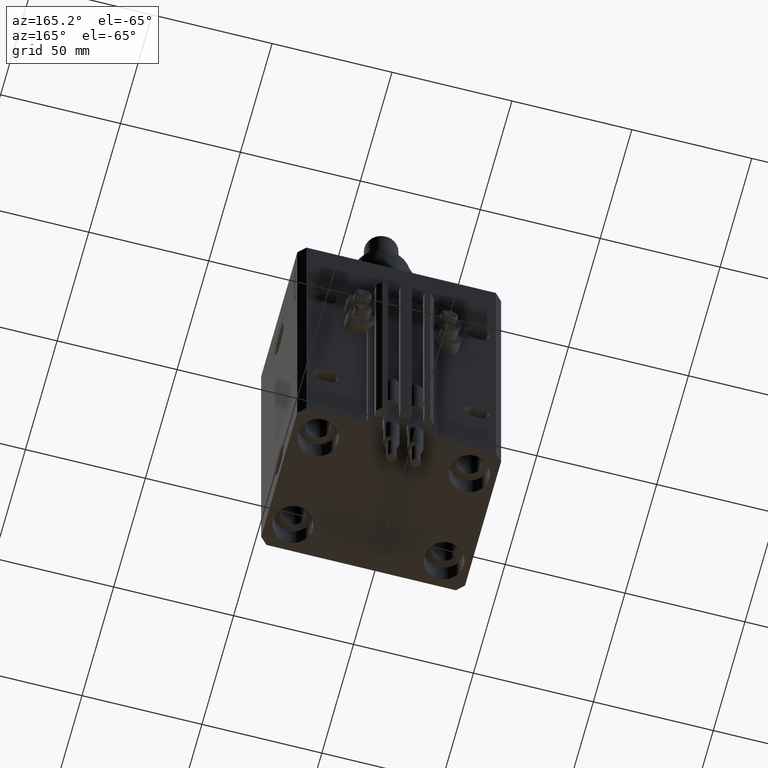
[diagram: clean part render]
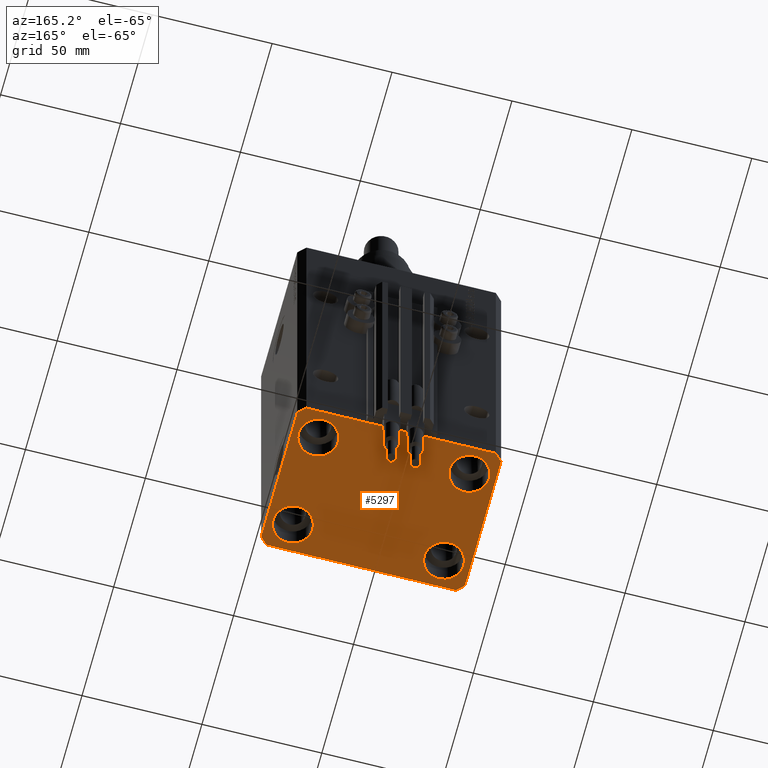
[diagram: same view with one face highlighted and labeled with its STEP entity id]
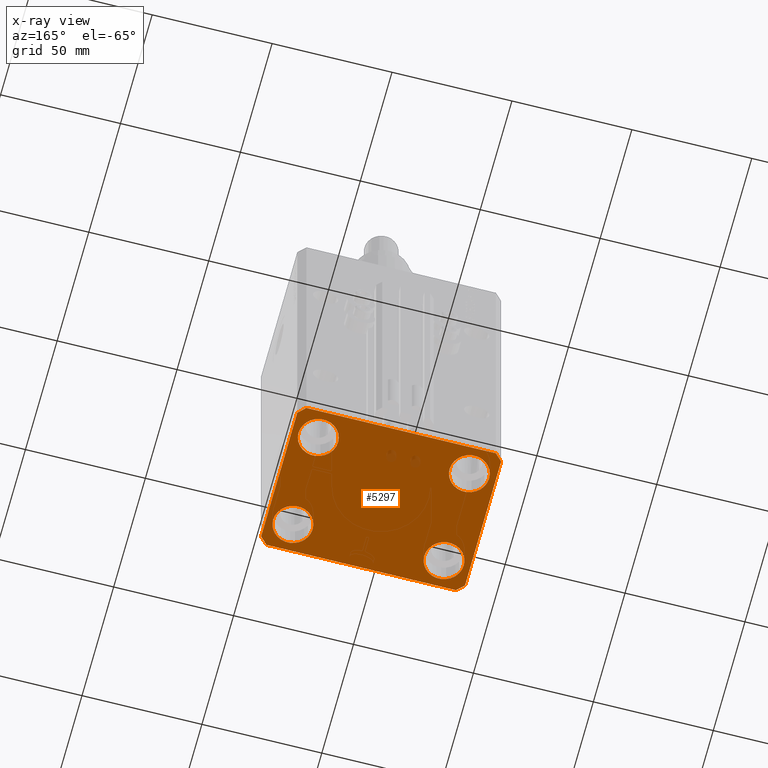
[diagram: x-ray of the same camera — body ghosted, the highlighted face saturated]
A machine part, auxiliary view. The second image highlights one B-rep face of the part: STEP entity #5297.
The next image is the same camera in x-ray: the body ghosted, the highlighted face saturated — about 1% of this face is hidden behind the body in this view.
In plain terms, the highlighted planar face has unit normal (0, 0, 1).
Its self-contained STEP definition (entity closure, byte-faithful):
#1 = VECTOR ( 'NONE', #50654, 1000.000000000000114 ) ;
#2 = DIRECTION ( 'NONE',  ( 1.000000000000000000, 0.000000000000000000, 0.000000000000000000 ) ) ;
#117 = ORIENTED_EDGE ( 'NONE', *, *, #30433, .T. ) ;
#738 = CARTESIAN_POINT ( 'NONE',  ( 0.000000000000000000, 0.000000000000000000, -153.0000000000000000 ) ) ;
#1197 = CARTESIAN_POINT ( 'NONE',  ( 42.50000000000000711, -28.50000000000000355, -153.0000000000000000 ) ) ;
#2427 = VECTOR ( 'NONE', #50848, 1000.000000000000000 ) ;
#3845 = VERTEX_POINT ( 'NONE', #49286 ) ;
#4135 = FACE_BOUND ( 'NONE', #43578, .T. ) ;
#4535 = VERTEX_POINT ( 'NONE', #46236 ) ;
#4550 = VERTEX_POINT ( 'NONE', #27150 ) ;
#4924 = VECTOR ( 'NONE', #5572, 1000.000000000000000 ) ;
#5042 = EDGE_CURVE ( 'NONE', #50228, #4535, #12908, .T. ) ;
#5216 = CARTESIAN_POINT ( 'NONE',  ( -39.75000000000000000, 20.00000000000000000, -153.0000000000000000 ) ) ;
#5297 = ADVANCED_FACE ( 'NONE', ( #4135, #16461, #12511, #28507, #8581 ), #24584, .F. ) ;
#5403 = EDGE_CURVE ( 'NONE', #3845, #21162, #15359, .T. ) ;
#5535 = CARTESIAN_POINT ( 'NONE',  ( -39.50000000000000711, -31.50000000000000000, -153.0000000000000000 ) ) ;
#5572 = DIRECTION ( 'NONE',  ( -0.7071067811865471286, -0.7071067811865479058, 0.000000000000000000 ) ) ;
#6437 = CARTESIAN_POINT ( 'NONE',  ( -42.50000000000000000, 28.50000000000000000, -153.0000000000000000 ) ) ;
#6515 = ORIENTED_EDGE ( 'NONE', *, *, #7058, .F. ) ;
#6952 = VERTEX_POINT ( 'NONE', #7692 ) ;
#7058 = EDGE_CURVE ( 'NONE', #6952, #49600, #41209, .T. ) ;
#7474 = EDGE_CURVE ( 'NONE', #43809, #6952, #20428, .T. ) ;
#7692 = CARTESIAN_POINT ( 'NONE',  ( -39.50000000000000711, 31.50000000000000000, -153.0000000000000000 ) ) ;
#7798 = CIRCLE ( 'NONE', #47945, 8.249999999999992895 ) ;
#7997 = AXIS2_PLACEMENT_3D ( 'NONE', #19934, #43988, #2 ) ;
#8188 = EDGE_CURVE ( 'NONE', #50855, #4550, #32706, .T. ) ;
#8217 = EDGE_LOOP ( 'NONE', ( #117, #38188 ) ) ;
#8247 = AXIS2_PLACEMENT_3D ( 'NONE', #10903, #14334, #30313 ) ;
#8469 = EDGE_CURVE ( 'NONE', #21162, #21482, #9682, .T. ) ;
#8581 = FACE_OUTER_BOUND ( 'NONE', #21487, .T. ) ;
#8741 = ORIENTED_EDGE ( 'NONE', *, *, #40605, .F. ) ;
#9105 = CARTESIAN_POINT ( 'NONE',  ( 39.74999999999999289, 20.00000000000001066, -153.0000000000000000 ) ) ;
#9164 = VECTOR ( 'NONE', #13945, 1000.000000000000000 ) ;
#9682 = LINE ( 'NONE', #41378, #47766 ) ;
#9828 = VERTEX_POINT ( 'NONE', #46255 ) ;
#10779 = LINE ( 'NONE', #14463, #2427 ) ;
#10897 = VERTEX_POINT ( 'NONE', #45562 ) ;
#10903 = CARTESIAN_POINT ( 'NONE',  ( -31.50000000000000000, 20.00000000000000000, -153.0000000000000000 ) ) ;
#11606 = CARTESIAN_POINT ( 'NONE',  ( 39.50000000000000711, -31.50000000000000000, -153.0000000000000000 ) ) ;
#12425 = EDGE_LOOP ( 'NONE', ( #23332, #13065 ) ) ;
#12511 = FACE_BOUND ( 'NONE', #44422, .T. ) ;
#12908 = CIRCLE ( 'NONE', #37200, 8.249999999999992895 ) ;
#13065 = ORIENTED_EDGE ( 'NONE', *, *, #47965, .T. ) ;
#13945 = DIRECTION ( 'NONE',  ( 8.886653596232072440E-15, 1.000000000000000000, 0.000000000000000000 ) ) ;
#14162 = DIRECTION ( 'NONE',  ( -0.000000000000000000, -0.000000000000000000, 1.000000000000000000 ) ) ;
#14334 = DIRECTION ( 'NONE',  ( -0.000000000000000000, -0.000000000000000000, 1.000000000000000000 ) ) ;
#14463 = CARTESIAN_POINT ( 'NONE',  ( -42.50000000000000000, 28.50000000000000000, -153.0000000000000000 ) ) ;
#14950 = CIRCLE ( 'NONE', #8247, 8.250000000000000000 ) ;
#15359 = LINE ( 'NONE', #34752, #18790 ) ;
#16461 = FACE_BOUND ( 'NONE', #12425, .T. ) ;
#16721 = DIRECTION ( 'NONE',  ( 1.000000000000000000, 0.000000000000000000, -0.000000000000000000 ) ) ;
#17806 = CIRCLE ( 'NONE', #47907, 8.250000000000000000 ) ;
#17961 = CARTESIAN_POINT ( 'NONE',  ( -23.25000000000000000, 20.00000000000000000, -153.0000000000000000 ) ) ;
#18159 = CARTESIAN_POINT ( 'NONE',  ( -39.50000000000000711, 31.50000000000000000, -153.0000000000000000 ) ) ;
#18163 = DIRECTION ( 'NONE',  ( -0.000000000000000000, -0.000000000000000000, 1.000000000000000000 ) ) ;
#18588 = ORIENTED_EDGE ( 'NONE', *, *, #41761, .F. ) ;
#18790 = VECTOR ( 'NONE', #26641, 1000.000000000000000 ) ;
#19652 = CIRCLE ( 'NONE', #34700, 8.250000000000000000 ) ;
#19934 = CARTESIAN_POINT ( 'NONE',  ( 31.50000000000000000, 20.00000000000001066, -153.0000000000000000 ) ) ;
#20186 = VECTOR ( 'NONE', #24088, 1000.000000000000000 ) ;
#20428 = LINE ( 'NONE', #39530, #20186 ) ;
#20549 = DIRECTION ( 'NONE',  ( 0.7071067811865483499, 0.7071067811865466846, 0.000000000000000000 ) ) ;
#21162 = VERTEX_POINT ( 'NONE', #5535 ) ;
#21310 = EDGE_CURVE ( 'NONE', #4535, #50228, #38963, .T. ) ;
#21422 = VERTEX_POINT ( 'NONE', #5216 ) ;
#21482 = VERTEX_POINT ( 'NONE', #42632 ) ;
#21487 = EDGE_LOOP ( 'NONE', ( #51277, #18588, #8741, #40856, #43348, #33237, #34750, #6515 ) ) ;
#21506 = DIRECTION ( 'NONE',  ( 1.000000000000000000, 0.000000000000000000, 0.000000000000000000 ) ) ;
#22456 = EDGE_CURVE ( 'NONE', #46178, #21422, #19652, .T. ) ;
#22769 = DIRECTION ( 'NONE',  ( 1.000000000000000000, 0.000000000000000000, 0.000000000000000000 ) ) ;
#22818 = CARTESIAN_POINT ( 'NONE',  ( 39.50000000000056843, 31.50000000000000000, -153.0000000000000000 ) ) ;
#23065 = DIRECTION ( 'NONE',  ( -0.000000000000000000, -0.000000000000000000, 1.000000000000000000 ) ) ;
#23131 = DIRECTION ( 'NONE',  ( 1.000000000000000000, 0.000000000000000000, 0.000000000000000000 ) ) ;
#23332 = ORIENTED_EDGE ( 'NONE', *, *, #50577, .T. ) ;
#24088 = DIRECTION ( 'NONE',  ( -1.000000000000000000, 0.000000000000000000, 0.000000000000000000 ) ) ;
#24584 = PLANE ( 'NONE',  #50542 ) ;
#25363 = ORIENTED_EDGE ( 'NONE', *, *, #21310, .T. ) ;
#26170 = ORIENTED_EDGE ( 'NONE', *, *, #5042, .T. ) ;
#26627 = VERTEX_POINT ( 'NONE', #46923 ) ;
#26641 = DIRECTION ( 'NONE',  ( 0.7071067811865471286, -0.7071067811865479058, 0.000000000000000000 ) ) ;
#26849 = CARTESIAN_POINT ( 'NONE',  ( 42.50000000000051870, 28.49999999999995381, -153.0000000000000000 ) ) ;
#27026 = CARTESIAN_POINT ( 'NONE',  ( -31.50000000000000000, -20.00000000000000000, -153.0000000000000000 ) ) ;
#27098 = DIRECTION ( 'NONE',  ( -0.000000000000000000, -0.000000000000000000, 1.000000000000000000 ) ) ;
#27150 = CARTESIAN_POINT ( 'NONE',  ( -39.75000000000000000, -20.00000000000000000, -153.0000000000000000 ) ) ;
#27737 = CARTESIAN_POINT ( 'NONE',  ( 31.50000000000000000, 20.00000000000001066, -153.0000000000000000 ) ) ;
#28507 = FACE_BOUND ( 'NONE', #8217, .T. ) ;
#30313 = DIRECTION ( 'NONE',  ( 1.000000000000000000, 0.000000000000000000, 0.000000000000000000 ) ) ;
#30401 = CARTESIAN_POINT ( 'NONE',  ( 31.50000000000000000, -20.00000000000000000, -153.0000000000000000 ) ) ;
#30433 = EDGE_CURVE ( 'NONE', #21422, #46178, #14950, .T. ) ;
#30877 = DIRECTION ( 'NONE',  ( -0.000000000000000000, -0.000000000000000000, 1.000000000000000000 ) ) ;
#31129 = EDGE_CURVE ( 'NONE', #21482, #9828, #35470, .T. ) ;
#32706 = CIRCLE ( 'NONE', #49423, 8.250000000000000000 ) ;
#33237 = ORIENTED_EDGE ( 'NONE', *, *, #5403, .F. ) ;
#33430 = ORIENTED_EDGE ( 'NONE', *, *, #46897, .T. ) ;
#33886 = AXIS2_PLACEMENT_3D ( 'NONE', #50123, #27098, #38613 ) ;
#34434 = LINE ( 'NONE', #26849, #1 ) ;
#34699 = CIRCLE ( 'NONE', #33886, 8.249999999999992895 ) ;
#34700 = AXIS2_PLACEMENT_3D ( 'NONE', #42233, #18163, #23131 ) ;
#34750 = ORIENTED_EDGE ( 'NONE', *, *, #36110, .F. ) ;
#34752 = CARTESIAN_POINT ( 'NONE',  ( -42.50000000000000000, -28.50000000000000000, -153.0000000000000000 ) ) ;
#34855 = DIRECTION ( 'NONE',  ( 1.000000000000000000, 0.000000000000000000, 0.000000000000000000 ) ) ;
#35470 = LINE ( 'NONE', #11606, #48396 ) ;
#35763 = VERTEX_POINT ( 'NONE', #44392 ) ;
#35876 = DIRECTION ( 'NONE',  ( 1.000000000000000000, 0.000000000000000000, 0.000000000000000000 ) ) ;
#36110 = EDGE_CURVE ( 'NONE', #49600, #3845, #10779, .T. ) ;
#37200 = AXIS2_PLACEMENT_3D ( 'NONE', #27737, #30877, #22769 ) ;
#38188 = ORIENTED_EDGE ( 'NONE', *, *, #22456, .T. ) ;
#38613 = DIRECTION ( 'NONE',  ( 1.000000000000000000, 0.000000000000000000, 0.000000000000000000 ) ) ;
#38963 = CIRCLE ( 'NONE', #7997, 8.249999999999992895 ) ;
#39314 = DIRECTION ( 'NONE',  ( 1.000000000000000000, 0.000000000000000000, 0.000000000000000000 ) ) ;
#39516 = CARTESIAN_POINT ( 'NONE',  ( -23.25000000000000000, -20.00000000000000000, -153.0000000000000000 ) ) ;
#39530 = CARTESIAN_POINT ( 'NONE',  ( 39.50000000000056843, 31.50000000000000000, -153.0000000000000000 ) ) ;
#40545 = DIRECTION ( 'NONE',  ( 0.000000000000000000, 0.000000000000000000, 1.000000000000000000 ) ) ;
#40605 = EDGE_CURVE ( 'NONE', #9828, #26627, #50586, .T. ) ;
#40856 = ORIENTED_EDGE ( 'NONE', *, *, #31129, .F. ) ;
#41209 = LINE ( 'NONE', #18159, #4924 ) ;
#41378 = CARTESIAN_POINT ( 'NONE',  ( -39.50000000000000711, -31.50000000000000000, -153.0000000000000000 ) ) ;
#41761 = EDGE_CURVE ( 'NONE', #26627, #43809, #34434, .T. ) ;
#42233 = CARTESIAN_POINT ( 'NONE',  ( -31.50000000000000000, 20.00000000000000000, -153.0000000000000000 ) ) ;
#42632 = CARTESIAN_POINT ( 'NONE',  ( 39.50000000000000711, -31.50000000000000000, -153.0000000000000000 ) ) ;
#43348 = ORIENTED_EDGE ( 'NONE', *, *, #8469, .F. ) ;
#43578 = EDGE_LOOP ( 'NONE', ( #33430, #43680 ) ) ;
#43680 = ORIENTED_EDGE ( 'NONE', *, *, #8188, .T. ) ;
#43809 = VERTEX_POINT ( 'NONE', #22818 ) ;
#43988 = DIRECTION ( 'NONE',  ( -0.000000000000000000, -0.000000000000000000, 1.000000000000000000 ) ) ;
#44392 = CARTESIAN_POINT ( 'NONE',  ( 39.74999999999999289, -20.00000000000000000, -153.0000000000000000 ) ) ;
#44422 = EDGE_LOOP ( 'NONE', ( #25363, #26170 ) ) ;
#45562 = CARTESIAN_POINT ( 'NONE',  ( 23.25000000000000355, -20.00000000000000000, -153.0000000000000000 ) ) ;
#46178 = VERTEX_POINT ( 'NONE', #17961 ) ;
#46236 = CARTESIAN_POINT ( 'NONE',  ( 23.25000000000000355, 20.00000000000001066, -153.0000000000000000 ) ) ;
#46255 = CARTESIAN_POINT ( 'NONE',  ( 42.50000000000000711, -28.50000000000000355, -153.0000000000000000 ) ) ;
#46897 = EDGE_CURVE ( 'NONE', #4550, #50855, #17806, .T. ) ;
#46923 = CARTESIAN_POINT ( 'NONE',  ( 42.50000000000051870, 28.49999999999995381, -153.0000000000000000 ) ) ;
#47766 = VECTOR ( 'NONE', #21506, 1000.000000000000000 ) ;
#47907 = AXIS2_PLACEMENT_3D ( 'NONE', #51577, #23065, #35876 ) ;
#47945 = AXIS2_PLACEMENT_3D ( 'NONE', #30401, #14162, #34855 ) ;
#47965 = EDGE_CURVE ( 'NONE', #35763, #10897, #7798, .T. ) ;
#48396 = VECTOR ( 'NONE', #20549, 1000.000000000000000 ) ;
#49286 = CARTESIAN_POINT ( 'NONE',  ( -42.50000000000000000, -28.50000000000000000, -153.0000000000000000 ) ) ;
#49423 = AXIS2_PLACEMENT_3D ( 'NONE', #27026, #51349, #39314 ) ;
#49600 = VERTEX_POINT ( 'NONE', #6437 ) ;
#50123 = CARTESIAN_POINT ( 'NONE',  ( 31.50000000000000000, -20.00000000000000000, -153.0000000000000000 ) ) ;
#50228 = VERTEX_POINT ( 'NONE', #9105 ) ;
#50542 = AXIS2_PLACEMENT_3D ( 'NONE', #738, #40545, #16721 ) ;
#50577 = EDGE_CURVE ( 'NONE', #10897, #35763, #34699, .T. ) ;
#50586 = LINE ( 'NONE', #1197, #9164 ) ;
#50654 = DIRECTION ( 'NONE',  ( -0.7071067811865356934, 0.7071067811865594521, 0.000000000000000000 ) ) ;
#50848 = DIRECTION ( 'NONE',  ( 0.000000000000000000, -1.000000000000000000, 0.000000000000000000 ) ) ;
#50855 = VERTEX_POINT ( 'NONE', #39516 ) ;
#51277 = ORIENTED_EDGE ( 'NONE', *, *, #7474, .F. ) ;
#51349 = DIRECTION ( 'NONE',  ( -0.000000000000000000, -0.000000000000000000, 1.000000000000000000 ) ) ;
#51577 = CARTESIAN_POINT ( 'NONE',  ( -31.50000000000000000, -20.00000000000000000, -153.0000000000000000 ) ) ;